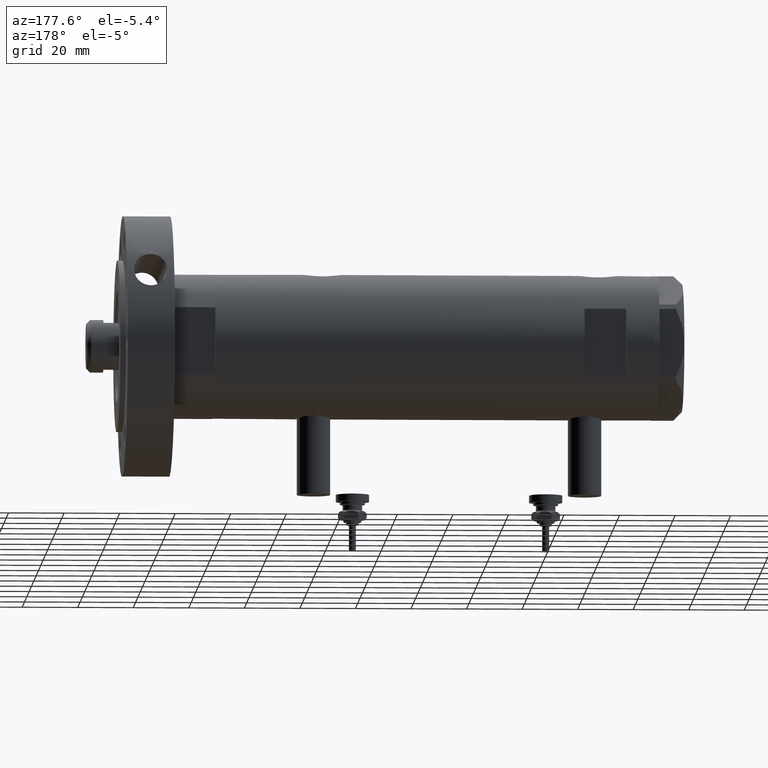
[diagram: clean part render]
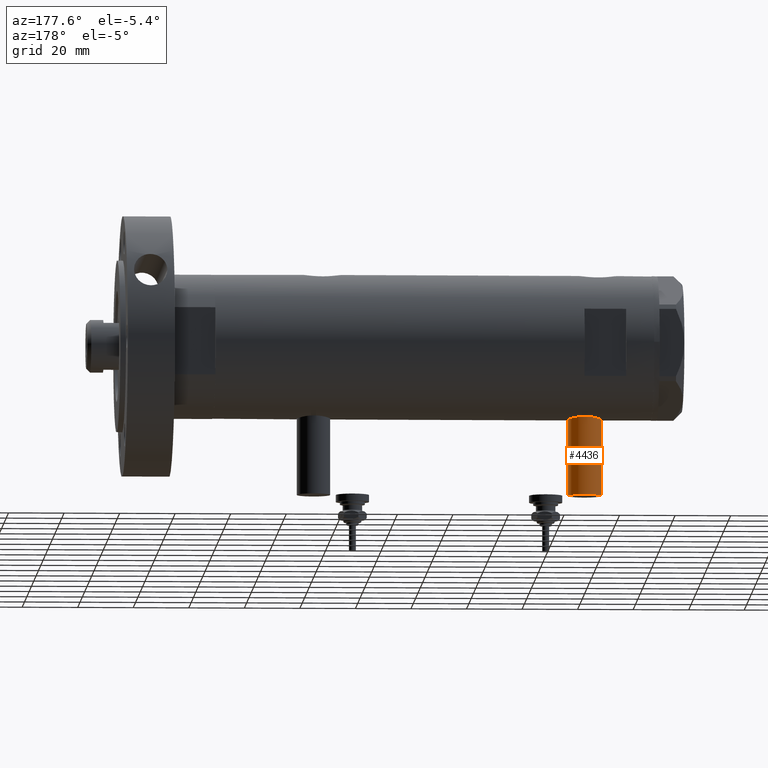
[diagram: same view with one face highlighted and labeled with its STEP entity id]
A machine part, auxiliary view. The second image highlights one B-rep face of the part: STEP entity #4436.
In plain terms, the highlighted cylindrical surface (edge-blend (fillet) strip) has radius 6 mm, axis along (0, 0, 1).
Its self-contained STEP definition (entity closure, byte-faithful):
#10 = DIRECTION ( 'NONE',  ( 0.000000000000000000, 0.000000000000000000, 1.000000000000000000 ) ) ;
#52 = VERTEX_POINT ( 'NONE', #4194 ) ;
#133 = LINE ( 'NONE', #2447, #3539 ) ;
#162 = EDGE_LOOP ( 'NONE', ( #1399, #6559, #5957, #2825 ) ) ;
#225 = EDGE_CURVE ( 'NONE', #2500, #1822, #133, .T. ) ;
#481 = DIRECTION ( 'NONE',  ( -1.000000000000000000, 0.000000000000000000, 0.000000000000000000 ) ) ;
#722 = CARTESIAN_POINT ( 'NONE',  ( -53.40000000000000568, 0.000000000000000000, 48.95000000000000995 ) ) ;
#759 = CARTESIAN_POINT ( 'NONE',  ( -53.40000000000000568, 7.347880794884108889E-16, 60.95000000000000284 ) ) ;
#1202 = CYLINDRICAL_SURFACE ( 'NONE', #7650, 5.999999999999998224 ) ;
#1264 = DIRECTION ( 'NONE',  ( 1.000000000000000000, -0.000000000000000000, -0.000000000000000000 ) ) ;
#1399 = ORIENTED_EDGE ( 'NONE', *, *, #3023, .F. ) ;
#1430 = EDGE_CURVE ( 'NONE', #1822, #4069, #2521, .T. ) ;
#1822 = VERTEX_POINT ( 'NONE', #6511 ) ;
#2003 = AXIS2_PLACEMENT_3D ( 'NONE', #4860, #481, #10 ) ;
#2214 = DIRECTION ( 'NONE',  ( -1.000000000000000000, 0.000000000000000000, 0.000000000000000000 ) ) ;
#2447 = CARTESIAN_POINT ( 'NONE',  ( -53.40000000000000568, 7.347880794884112834E-16, 60.95000000000000284 ) ) ;
#2500 = VERTEX_POINT ( 'NONE', #759 ) ;
#2521 = CIRCLE ( 'NONE', #7697, 5.999999999999998224 ) ;
#2594 = FACE_OUTER_BOUND ( 'NONE', #162, .T. ) ;
#2825 = ORIENTED_EDGE ( 'NONE', *, *, #7609, .F. ) ;
#3023 = EDGE_CURVE ( 'NONE', #2500, #52, #5891, .T. ) ;
#3539 = VECTOR ( 'NONE', #4938, 1000.000000000000000 ) ;
#3693 = DIRECTION ( 'NONE',  ( 0.000000000000000000, 0.000000000000000000, -1.000000000000000000 ) ) ;
#4069 = VERTEX_POINT ( 'NONE', #7953 ) ;
#4194 = CARTESIAN_POINT ( 'NONE',  ( -53.40000000000000568, 0.000000000000000000, 48.95000000000000995 ) ) ;
#4436 = ADVANCED_FACE ( 'NONE', ( #2594 ), #1202, .T. ) ;
#4691 = DIRECTION ( 'NONE',  ( 0.000000000000000000, 0.000000000000000000, 1.000000000000000000 ) ) ;
#4860 = CARTESIAN_POINT ( 'NONE',  ( -53.40000000000000568, 0.000000000000000000, 54.95000000000000284 ) ) ;
#4938 = DIRECTION ( 'NONE',  ( 1.000000000000000000, -0.000000000000000000, -0.000000000000000000 ) ) ;
#5499 = DIRECTION ( 'NONE',  ( 1.000000000000000000, -0.000000000000000000, -0.000000000000000000 ) ) ;
#5891 = CIRCLE ( 'NONE', #2003, 5.999999999999998224 ) ;
#5957 = ORIENTED_EDGE ( 'NONE', *, *, #1430, .T. ) ;
#6142 = CARTESIAN_POINT ( 'NONE',  ( -53.40000000000000568, 0.000000000000000000, 54.95000000000000284 ) ) ;
#6502 = VECTOR ( 'NONE', #1264, 1000.000000000000000 ) ;
#6511 = CARTESIAN_POINT ( 'NONE',  ( -24.80000000000000426, 7.347880794884108889E-16, 60.95000000000000284 ) ) ;
#6559 = ORIENTED_EDGE ( 'NONE', *, *, #225, .T. ) ;
#7331 = LINE ( 'NONE', #722, #6502 ) ;
#7609 = EDGE_CURVE ( 'NONE', #52, #4069, #7331, .T. ) ;
#7650 = AXIS2_PLACEMENT_3D ( 'NONE', #6142, #5499, #3693 ) ;
#7697 = AXIS2_PLACEMENT_3D ( 'NONE', #7772, #2214, #4691 ) ;
#7772 = CARTESIAN_POINT ( 'NONE',  ( -24.80000000000000426, 0.000000000000000000, 54.95000000000000284 ) ) ;
#7953 = CARTESIAN_POINT ( 'NONE',  ( -24.80000000000000426, 0.000000000000000000, 48.95000000000000995 ) ) ;